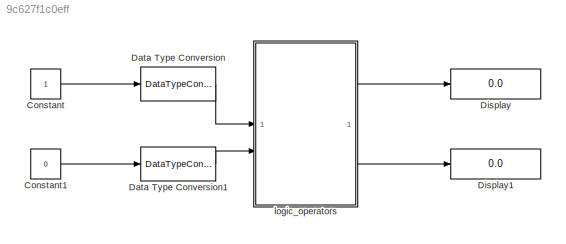
MODEL slx_9c627f1c0eff
KIND model
CONFIG AbsTol = auto
CONFIG EnableMultiTasking = off
CONFIG FixedStep = auto
CONFIG MaxStep = auto
CONFIG MinStep = auto
CONFIG RelTol = 1e-3
CONFIG SampleTimeConstraint = Unconstrained
CONFIG SolverName = FixedStepDiscrete
CONFIG StartTime = 0.0
CONFIG StopTime = 10.0
BLOCK [Constant] Constant
  OutDataTypeStr = boolean
  SampleTime = 1
BLOCK [Constant] Constant1
  OutDataTypeStr = boolean
  SampleTime = 1
  Value = 0
BLOCK [DataTypeConversion] Data Type Conversion
  OutDataTypeStr = boolean
  RndMeth = Floor
  SaturateOnIntegerOverflow = off
BLOCK [DataTypeConversion] Data Type Conversion1
  OutDataTypeStr = boolean
  RndMeth = Floor
  SaturateOnIntegerOverflow = off
BLOCK [Display] Display
  Decimation = 1
BLOCK [Display] Display1
  Decimation = 1
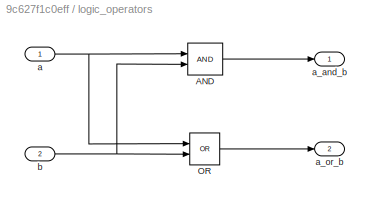
BLOCK [SubSystem] logic_operators
  TreatAsAtomicUnit = on
BLOCK [Logic] logic_operators/AND
  AllPortsSameDT = off
  IconShape = distinctive
  OutDataTypeStr = boolean
BLOCK [Logic] logic_operators/OR
  AllPortsSameDT = off
  IconShape = distinctive
  Operator = OR
  OutDataTypeStr = boolean
BLOCK [Inport] logic_operators/a
BLOCK [Outport] logic_operators/a_and_b
BLOCK [Outport] logic_operators/a_or_b
  Port = 2
BLOCK [Inport] logic_operators/b
  Port = 2
LINE Constant1:1 -> Data Type Conversion1:1
LINE Constant:1 -> Data Type Conversion:1
LINE Data Type Conversion1:1 -> logic_operators:2
LINE Data Type Conversion:1 -> logic_operators:1
LINE logic_operators/AND:1 -> logic_operators/a_and_b:1
LINE logic_operators/OR:1 -> logic_operators/a_or_b:1
NET logic_operators/a:1 -> logic_operators/AND:1, logic_operators/OR:1
NET logic_operators/b:1 -> logic_operators/AND:2, logic_operators/OR:2
LINE logic_operators:1 -> Display:1
LINE logic_operators:2 -> Display1:1
note: NET lines group one-source signal fan-out (src -> all destinations, sorted); 1:1 wires keep LINE
